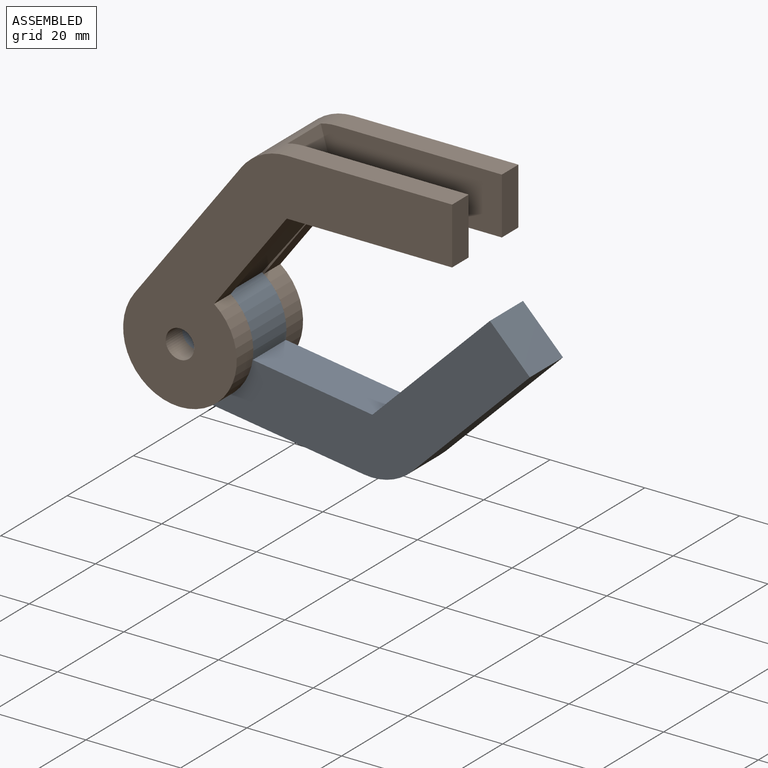
[diagram: assembled view]
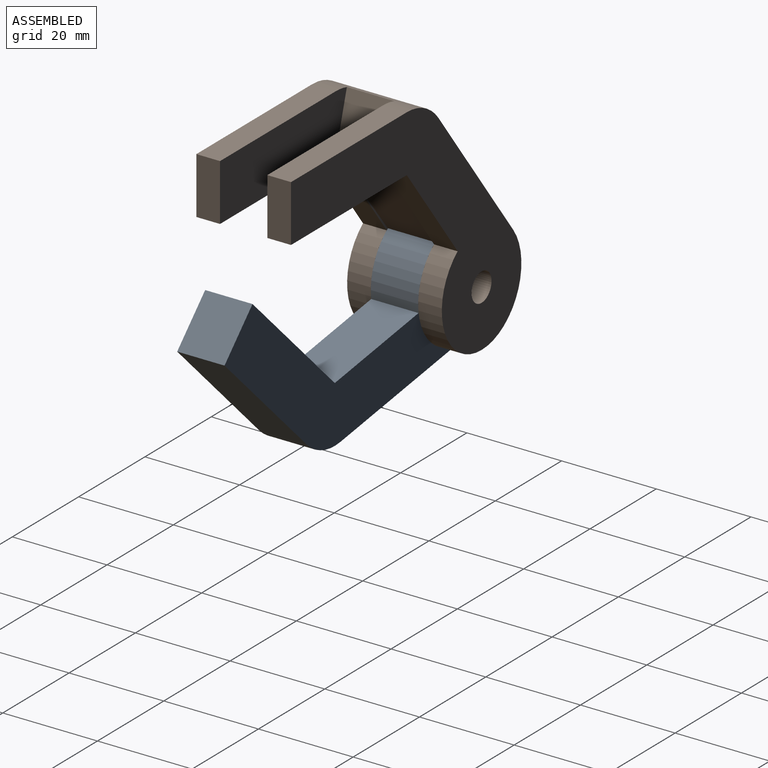
[diagram: assembled view, second angle]
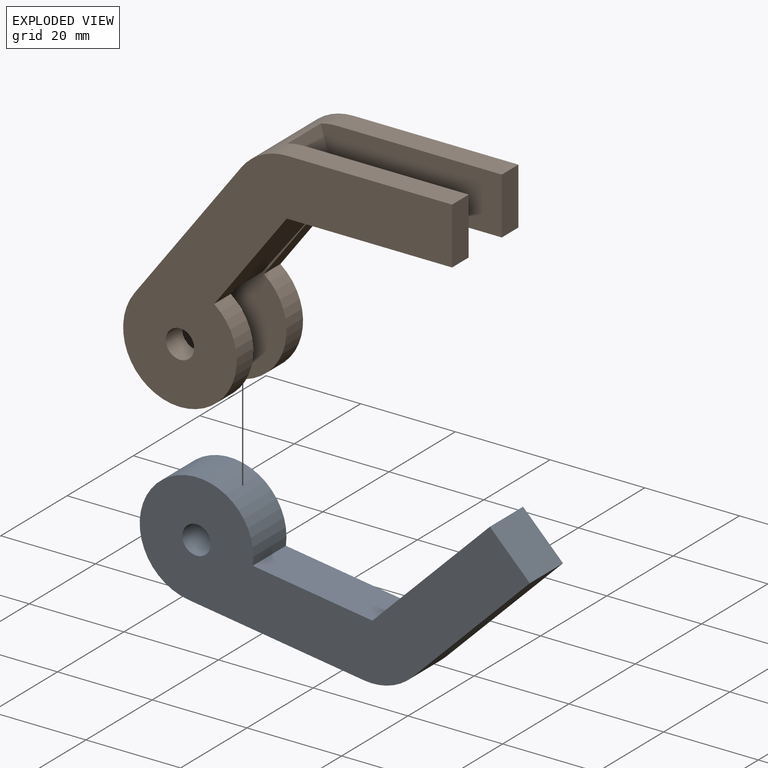
[diagram: exploded view]
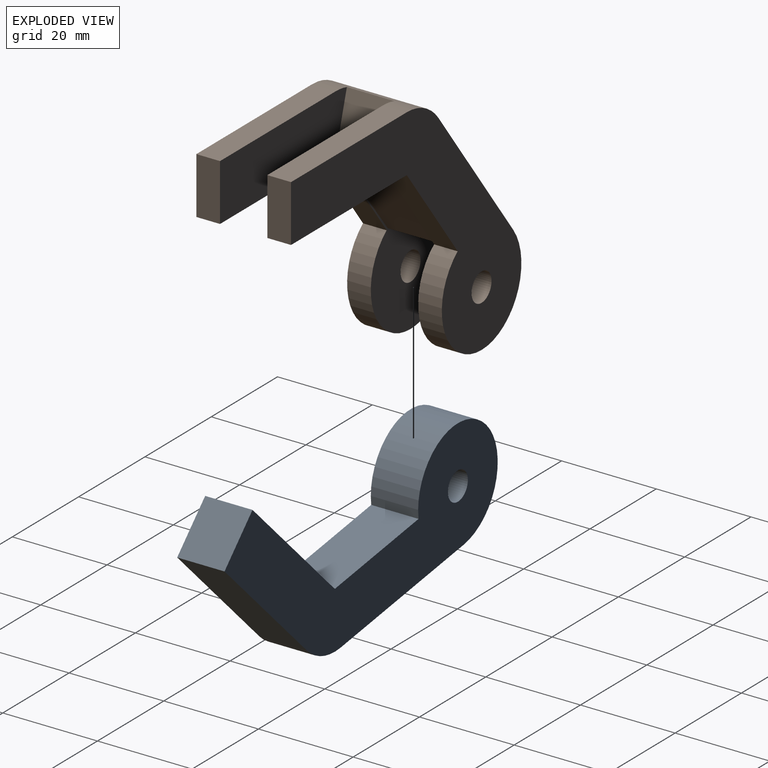
[diagram: exploded view, second angle]
ASSEMBLY  parts=2 mates=2
PART A: 10 faces, bbox 69.5x10x54 mm
  f0: plane 34.92x10mm, normal (0,0,1), area 349.2mm2, adj f1,f6,f7,f8
  f1: plane 20.41x15.34mm, normal (0.8,0,0.6), area 255.3mm2, adj f0,f2,f7,f8
  f2: cylinder r=12mm len=24mm, axis (0,1,0), area 565.5mm2, adj f1,f3,f7,f8
  f3: plane 30x22.56mm, normal (-0.8,0,-0.6), area 375.3mm2, adj f2,f4,f7,f8
  f4: cylinder r=12mm len=10mm, axis (0,1,0), area 111.1mm2, adj f3,f5,f7,f8
  f5: plane 34.92x10mm, normal (0,0,-1), area 349.2mm2, adj f4,f6,f7,f8
  f6: plane 12x10mm, normal (1,0,0), area 120mm2, adj f0,f5,f7,f8
  f7: plane 69.48x54mm, normal (0,-1,0), area 1247.2mm2, adj f0,f1,f2,f3,f4,f5,f6,f9
  f8: plane 69.48x54mm, normal (0,1,0), area 1247.2mm2, adj f0,f1,f2,f3,f4,f5,f6,f9
  f9: cylinder r=3mm len=10mm, axis (0,1,0), area 188.5mm2, adj f7,f8
PART B: 23 faces, bbox 69.5x20x54 mm
  f0: plane 20.41x15.34mm, normal (0.8,0,-0.6), area 127.7mm2, adj f1,f6,f11,f18
  f1: plane 69.48x54mm, normal (0,1,0), area 1247.2mm2, adj f0,f2,f5,f6,f15,f18,f19,f20
  f2: plane 30x22.56mm, normal (-0.8,0,0.6), area 630.7mm2, adj f1,f3,f5,f6,f10,f11,f12,f13
  f3: cylinder r=12mm len=24mm, axis (0,1,0), area 282.7mm2, adj f2,f7,f10,f12
  f4: plane 34.92x5mm, normal (0,0,1), area 174.6mm2, adj f5,f9,f10,f17
  f5: cylinder r=12mm len=20mm, axis (0,1,0), area 188.5mm2, adj f1,f2,f4,f10,f16,f17,f19,f21
  f6: cylinder r=12mm len=24mm, axis (0,1,0), area 282.7mm2, adj f0,f1,f2,f11
  f7: plane 20.41x15.34mm, normal (0.8,0,-0.6), area 127.7mm2, adj f3,f8,f10,f12
  f8: plane 34.92x5mm, normal (0,0,-1), area 174.6mm2, adj f7,f9,f10,f17
  f9: plane 12x5mm, normal (1,0,0), area 60mm2, adj f4,f8,f10,f17
  f10: plane 69.48x54mm, normal (0,-1,0), area 1247.2mm2, adj f2,f3,f4,f5,f7,f8,f9,f14
  f11: plane 42x34.56mm, normal (0,-1,0), area 460.7mm2, adj f0,f2,f6,f13,f15,f22
  f12: plane 42x34.56mm, normal (0,1,0), area 460.7mm2, adj f2,f3,f7,f13,f14,f22
  f13: plane 10x9.24mm, normal (-0.6,0,-0.8), area 115.5mm2, adj f2,f11,f12,f22
  f14: cylinder r=3mm len=6mm, axis (0,1,0), area 94.2mm2, adj f10,f12
  f15: cylinder r=3mm len=6mm, axis (0,1,0), area 94.2mm2, adj f1,f11
  f16: plane 11.53x10mm, normal (0.96,0,0.28), area 120mm2, adj f5,f17,f21,f22
  f17: plane 38.26x12mm, normal (0,1,0), area 439.3mm2, adj f4,f5,f8,f9,f16
  f18: plane 34.92x5mm, normal (0,0,-1), area 174.6mm2, adj f0,f1,f20,f21
  f19: plane 34.92x5mm, normal (0,0,1), area 174.6mm2, adj f1,f5,f20,f21
  f20: plane 12x5mm, normal (1,0,0), area 60mm2, adj f1,f18,f19,f21
  f21: plane 38.26x12mm, normal (0,-1,0), area 439.3mm2, adj f5,f16,f18,f19,f20
  f22: plane 20.14x15.7mm, normal (0.79,0,-0.61), area 255.4mm2, adj f11,f12,f13,f16
PLACE A rot(axis=(0,-1,0),44.7deg) t=(-42.13,-10.39,22.06)mm
PLACE B t=(-45.32,-10.39,2.2)mm fixed
MATE cylindrical B.f3 <-> A.f2  axis (0,-1,0) through (-67.87,-20.39,16.01)mm
MATE planar A.f2 <-> B.f12  axis (0,-1,0) through (-67.87,-15.39,16.01)mm
